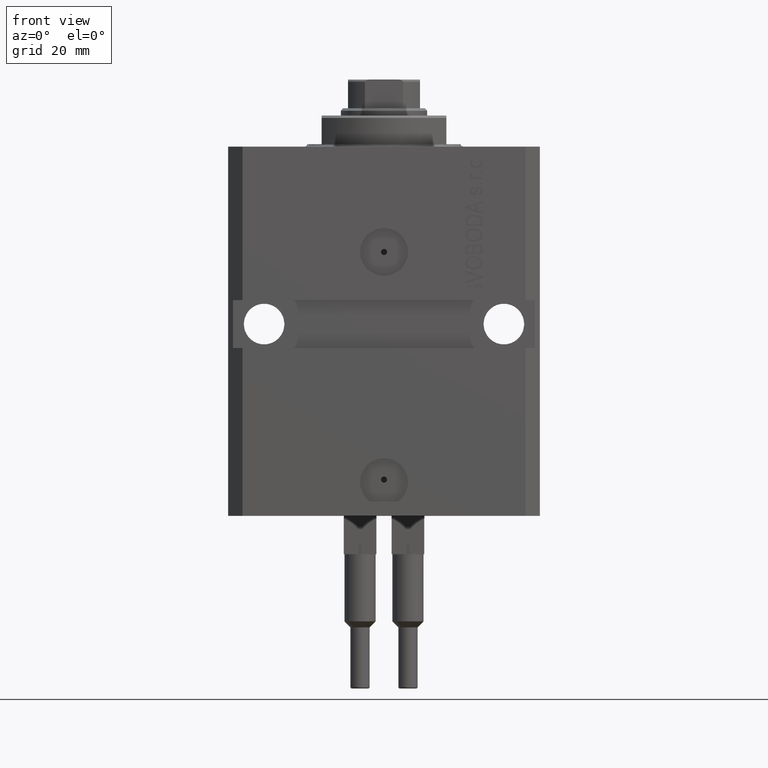
[diagram: clean part render]
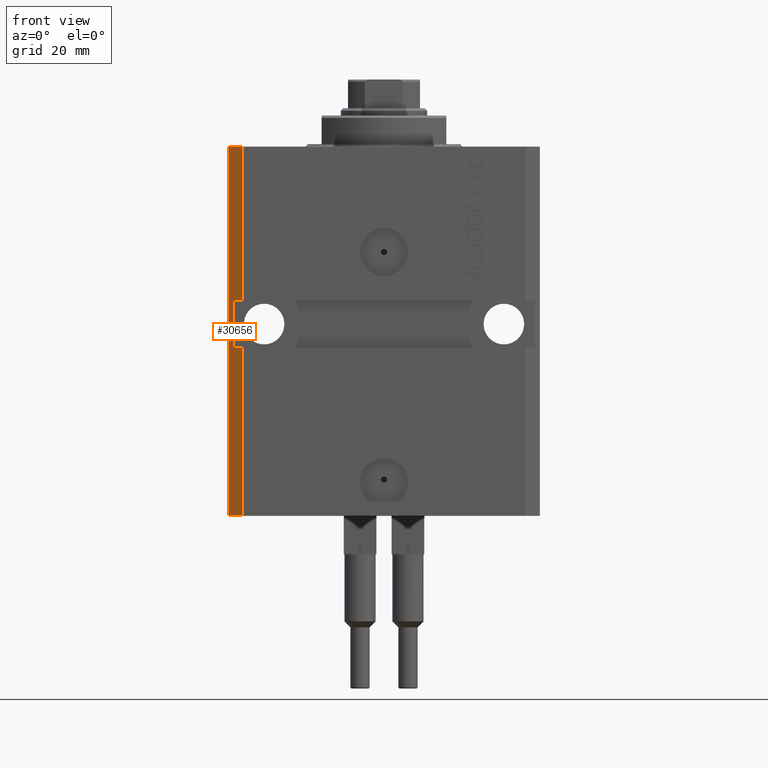
[diagram: same view with one face highlighted and labeled with its STEP entity id]
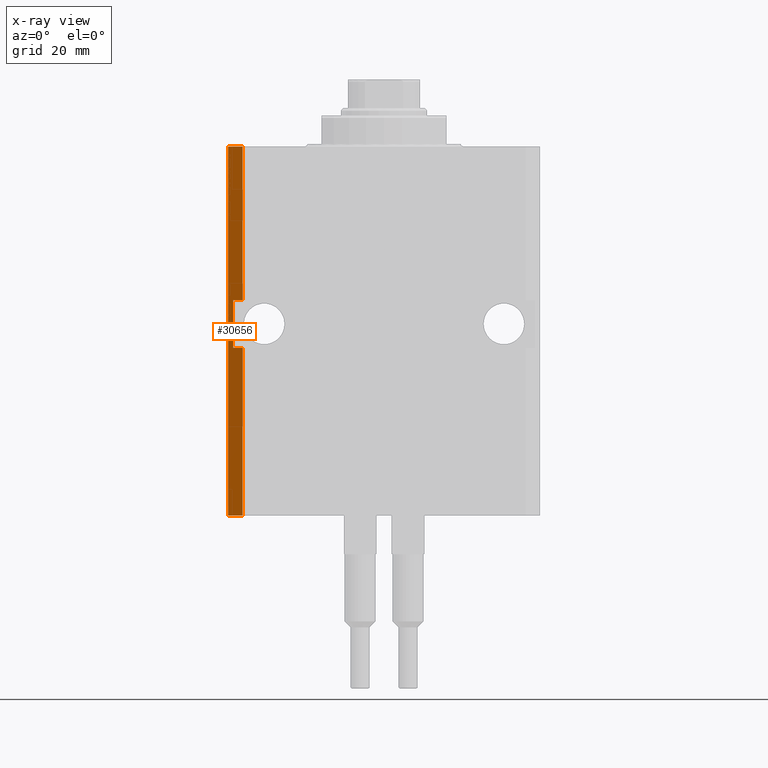
[diagram: x-ray of the same camera — body ghosted, the highlighted face saturated]
A machine part, front view. The second image highlights one B-rep face of the part: STEP entity #30656.
The next image is the same camera in x-ray: the body ghosted, the highlighted face saturated — about 0% of this face is hidden behind the body in this view.
In plain terms, the highlighted planar face has unit normal (-0.7071, -0.7071, 0).
Its self-contained STEP definition (entity closure, byte-faithful):
#1061 = ORIENTED_EDGE ( 'NONE', *, *, #22437, .T. ) ;
#3886 = DIRECTION ( 'NONE',  ( 0.7071067811865474617, -0.7071067811865474617, 0.000000000000000000 ) ) ;
#4335 = CARTESIAN_POINT ( 'NONE',  ( -29.49999999999650058, -22.49999999999949907, -32.00000000000000000 ) ) ;
#4997 = EDGE_LOOP ( 'NONE', ( #17951, #8895, #47135, #14465, #6509, #10086, #31697, #1061 ) ) ;
#5188 = EDGE_CURVE ( 'NONE', #28164, #16553, #29612, .T. ) ;
#6285 = DIRECTION ( 'NONE',  ( 0.7071067811865474617, -0.7071067811865474617, 7.548521435980497974E-17 ) ) ;
#6330 = LINE ( 'NONE', #21371, #35690 ) ;
#6509 = ORIENTED_EDGE ( 'NONE', *, *, #7346, .F. ) ;
#6570 = CARTESIAN_POINT ( 'NONE',  ( -31.49999999999650413, -20.49999999999949907, -41.99999999999999289 ) ) ;
#7346 = EDGE_CURVE ( 'NONE', #7367, #22091, #43513, .T. ) ;
#7367 = VERTEX_POINT ( 'NONE', #46932 ) ;
#7497 = EDGE_CURVE ( 'NONE', #39314, #22091, #18534, .T. ) ;
#8895 = ORIENTED_EDGE ( 'NONE', *, *, #32133, .T. ) ;
#9834 = PLANE ( 'NONE',  #21704 ) ;
#10023 = CARTESIAN_POINT ( 'NONE',  ( -32.49999999999650413, -19.49999999999949907, 0.000000000000000000 ) ) ;
#10086 = ORIENTED_EDGE ( 'NONE', *, *, #20420, .F. ) ;
#11234 = VECTOR ( 'NONE', #19000, 1000.000000000000000 ) ;
#11247 = VECTOR ( 'NONE', #45768, 1000.000000000000114 ) ;
#11717 = DIRECTION ( 'NONE',  ( 0.000000000000000000, 0.000000000000000000, 1.000000000000000000 ) ) ;
#13366 = DIRECTION ( 'NONE',  ( 0.000000000000000000, 0.000000000000000000, 1.000000000000000000 ) ) ;
#14190 = DIRECTION ( 'NONE',  ( -0.7071067811865475727, -0.7071067811865475727, 0.000000000000000000 ) ) ;
#14465 = ORIENTED_EDGE ( 'NONE', *, *, #7497, .T. ) ;
#14875 = CARTESIAN_POINT ( 'NONE',  ( -29.49999999999650413, -22.49999999999949907, -77.00000000000000000 ) ) ;
#15951 = CARTESIAN_POINT ( 'NONE',  ( -29.49999999999650413, -22.49999999999949907, -77.00000000000000000 ) ) ;
#16553 = VERTEX_POINT ( 'NONE', #15951 ) ;
#17607 = FACE_OUTER_BOUND ( 'NONE', #4997, .T. ) ;
#17951 = ORIENTED_EDGE ( 'NONE', *, *, #42650, .F. ) ;
#18048 = DIRECTION ( 'NONE',  ( 0.7071067811865474617, -0.7071067811865474617, 0.000000000000000000 ) ) ;
#18534 = LINE ( 'NONE', #14875, #44170 ) ;
#19000 = DIRECTION ( 'NONE',  ( 0.000000000000000000, 0.000000000000000000, 1.000000000000000000 ) ) ;
#20420 = EDGE_CURVE ( 'NONE', #28164, #7367, #26870, .T. ) ;
#21371 = CARTESIAN_POINT ( 'NONE',  ( -31.49999999999650413, -20.49999999999950262, -77.00000000000000000 ) ) ;
#21704 = AXIS2_PLACEMENT_3D ( 'NONE', #39667, #14190, #28767 ) ;
#22091 = VERTEX_POINT ( 'NONE', #40384 ) ;
#22437 = EDGE_CURVE ( 'NONE', #16553, #22754, #46074, .T. ) ;
#22754 = VERTEX_POINT ( 'NONE', #47198 ) ;
#24498 = LINE ( 'NONE', #39991, #28186 ) ;
#24993 = VERTEX_POINT ( 'NONE', #26336 ) ;
#26336 = CARTESIAN_POINT ( 'NONE',  ( -31.49999999999650413, -20.49999999999950262, -32.00000000000000000 ) ) ;
#26870 = LINE ( 'NONE', #34123, #28199 ) ;
#27898 = VECTOR ( 'NONE', #18048, 1000.000000000000114 ) ;
#28164 = VERTEX_POINT ( 'NONE', #41496 ) ;
#28186 = VECTOR ( 'NONE', #6285, 1000.000000000000114 ) ;
#28199 = VECTOR ( 'NONE', #30492, 1000.000000000000000 ) ;
#28767 = DIRECTION ( 'NONE',  ( 0.7071067811865474617, -0.7071067811865474617, 0.000000000000000000 ) ) ;
#29612 = LINE ( 'NONE', #29858, #38752 ) ;
#29858 = CARTESIAN_POINT ( 'NONE',  ( -32.49999999999650413, -19.49999999999949907, -77.00000000000000000 ) ) ;
#30492 = DIRECTION ( 'NONE',  ( 0.000000000000000000, 0.000000000000000000, 1.000000000000000000 ) ) ;
#30656 = ADVANCED_FACE ( 'NONE', ( #17607 ), #9834, .T. ) ;
#31259 = CARTESIAN_POINT ( 'NONE',  ( -29.49999999999650413, -22.49999999999949907, -77.00000000000000000 ) ) ;
#31697 = ORIENTED_EDGE ( 'NONE', *, *, #5188, .T. ) ;
#32133 = EDGE_CURVE ( 'NONE', #32176, #24993, #6330, .T. ) ;
#32176 = VERTEX_POINT ( 'NONE', #6570 ) ;
#34123 = CARTESIAN_POINT ( 'NONE',  ( -32.49999999999650413, -19.49999999999949907, -77.00000000000000000 ) ) ;
#35690 = VECTOR ( 'NONE', #13366, 1000.000000000000000 ) ;
#38752 = VECTOR ( 'NONE', #3886, 1000.000000000000114 ) ;
#39314 = VERTEX_POINT ( 'NONE', #4335 ) ;
#39667 = CARTESIAN_POINT ( 'NONE',  ( -32.49999999999650413, -19.49999999999949907, -77.00000000000000000 ) ) ;
#39991 = CARTESIAN_POINT ( 'NONE',  ( -32.49999999999650413, -19.49999999999949551, -41.99999999999999289 ) ) ;
#40384 = CARTESIAN_POINT ( 'NONE',  ( -29.49999999999650413, -22.49999999999949907, 0.000000000000000000 ) ) ;
#41496 = CARTESIAN_POINT ( 'NONE',  ( -32.49999999999650413, -19.49999999999949907, -77.00000000000000000 ) ) ;
#42650 = EDGE_CURVE ( 'NONE', #32176, #22754, #24498, .T. ) ;
#43425 = LINE ( 'NONE', #43666, #11247 ) ;
#43513 = LINE ( 'NONE', #10023, #27898 ) ;
#43666 = CARTESIAN_POINT ( 'NONE',  ( -32.49999999999650413, -19.49999999999950262, -32.00000000000000000 ) ) ;
#44170 = VECTOR ( 'NONE', #11717, 1000.000000000000000 ) ;
#45768 = DIRECTION ( 'NONE',  ( -0.7071067811865474617, 0.7071067811865474617, 7.548521435980497974E-17 ) ) ;
#45958 = EDGE_CURVE ( 'NONE', #39314, #24993, #43425, .T. ) ;
#46074 = LINE ( 'NONE', #31259, #11234 ) ;
#46932 = CARTESIAN_POINT ( 'NONE',  ( -32.49999999999650413, -19.49999999999949907, 0.000000000000000000 ) ) ;
#47135 = ORIENTED_EDGE ( 'NONE', *, *, #45958, .F. ) ;
#47198 = CARTESIAN_POINT ( 'NONE',  ( -29.49999999999650413, -22.49999999999949907, -41.99999999999999289 ) ) ;